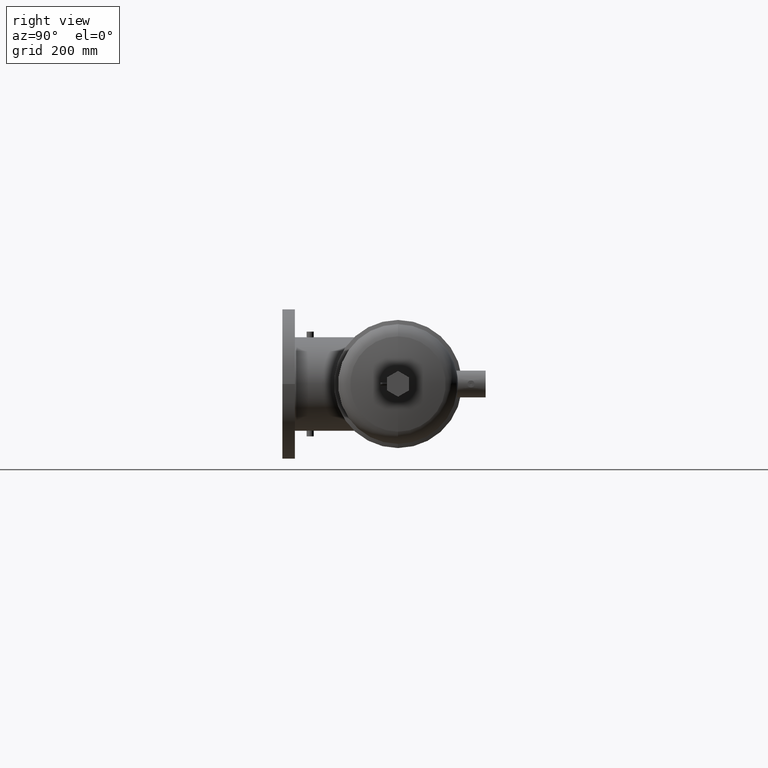
[diagram: clean part render]
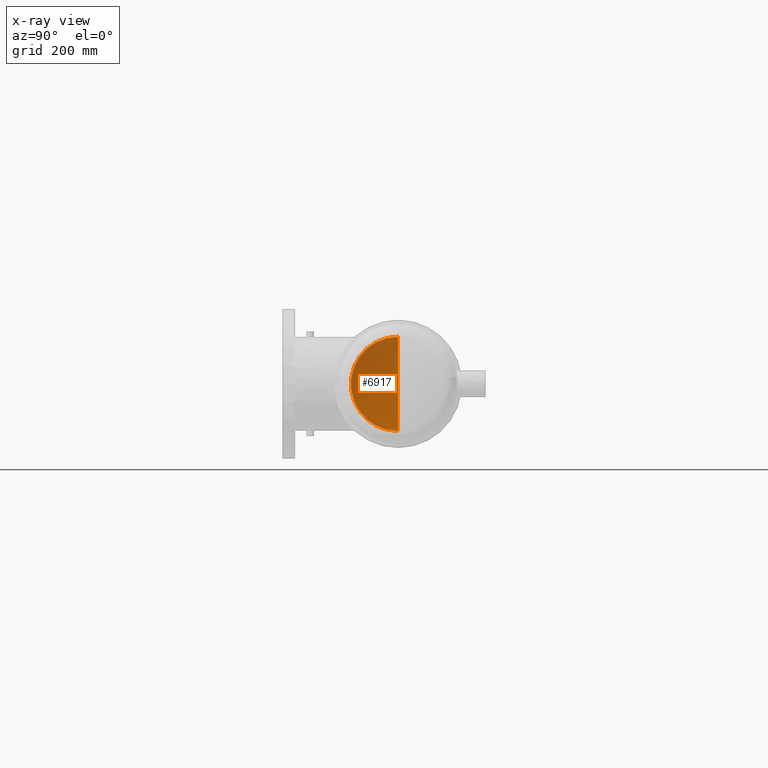
[diagram: x-ray — body ghosted, one internal face saturated and labeled with its STEP entity id]
A machine part, right view, then the same camera in x-ray: the body is ghosted and one INTERNAL B-rep face — a face not visible from any outside direction — is saturated and labeled: STEP entity #6917.
In plain terms, the highlighted toroidal blend (fillet) surface has major radius 0.0856 mm and minor (blend) radius 503 mm.
Its self-contained STEP definition (entity closure, byte-faithful):
#101 = EDGE_CURVE ( 'NONE', #950, #1098, #2002, .T. ) ;
#159 = EDGE_CURVE ( 'NONE', #950, #6503, #5587, .T. ) ;
#537 = DIRECTION ( 'NONE',  ( 0.0000000000000000000, 0.0000000000000000000, -1.000000000000000000 ) ) ;
#571 = CARTESIAN_POINT ( 'NONE',  ( 0.6530339572797809700, 0.0000000000000000000, 0.0000000000000000000 ) ) ;
#950 = VERTEX_POINT ( 'NONE', #6050 ) ;
#1091 = ORIENTED_EDGE ( 'NONE', *, *, #5270, .F. ) ;
#1098 = VERTEX_POINT ( 'NONE', #6661 ) ;
#1155 = DIRECTION ( 'NONE',  ( -0.0000000000000000000, 1.000000000000000000, 1.224646799147353200E-016 ) ) ;
#1443 = ORIENTED_EDGE ( 'NONE', *, *, #101, .F. ) ;
#1655 = DIRECTION ( 'NONE',  ( 0.0000000000000000000, -1.000000000000000000, 0.0000000000000000000 ) ) ;
#1878 = FACE_OUTER_BOUND ( 'NONE', #2619, .T. ) ;
#2002 = CIRCLE ( 'NONE', #4456, 4.232763004428499600 ) ;
#2586 = CIRCLE ( 'NONE', #5854, 19.80314960629924000 ) ;
#2619 = EDGE_LOOP ( 'NONE', ( #1443, #4863, #1091 ) ) ;
#2810 = DIRECTION ( 'NONE',  ( 0.0000000000000000000, -1.224646799147353200E-016, 1.000000000000000000 ) ) ;
#3065 = CARTESIAN_POINT ( 'NONE',  ( 19.99927305945529100, 0.0000000000000000000, 0.0000000000000000000 ) ) ;
#3627 = DIRECTION ( 'NONE',  ( -1.000000000000000000, -0.0000000000000000000, -0.0000000000000000000 ) ) ;
#3935 = AXIS2_PLACEMENT_3D ( 'NONE', #6717, #1155, #2810 ) ;
#4120 = AXIS2_PLACEMENT_3D ( 'NONE', #3065, #3627, #6901 ) ;
#4159 = TOROIDAL_SURFACE ( 'NONE', #4120, 0.003369793703696657600, 19.80314960629924000 ) ;
#4456 = AXIS2_PLACEMENT_3D ( 'NONE', #571, #4474, #6327 ) ;
#4474 = DIRECTION ( 'NONE',  ( -1.000000000000000000, -0.0000000000000000000, -0.0000000000000000000 ) ) ;
#4863 = ORIENTED_EDGE ( 'NONE', *, *, #159, .T. ) ;
#5270 = EDGE_CURVE ( 'NONE', #1098, #6503, #2586, .T. ) ;
#5587 = CIRCLE ( 'NONE', #3935, 19.80314960629924000 ) ;
#5854 = AXIS2_PLACEMENT_3D ( 'NONE', #5960, #1655, #537 ) ;
#5960 = CARTESIAN_POINT ( 'NONE',  ( 19.99927305945529100, 0.0000000000000000000, 0.003369793703696657600 ) ) ;
#6050 = CARTESIAN_POINT ( 'NONE',  ( 0.6530339572797798600, 5.183639664922694200E-016, -4.232763004428497800 ) ) ;
#6327 = DIRECTION ( 'NONE',  ( 0.0000000000000000000, 0.0000000000000000000, 1.000000000000000000 ) ) ;
#6503 = VERTEX_POINT ( 'NONE', #7238 ) ;
#6661 = CARTESIAN_POINT ( 'NONE',  ( 0.6530339572797798600, 0.0000000000000000000, 4.232763004428497800 ) ) ;
#6717 = CARTESIAN_POINT ( 'NONE',  ( 19.99927305945529100, 4.126807073019016200E-019, -0.003369793703696657600 ) ) ;
#6901 = DIRECTION ( 'NONE',  ( 0.0000000000000000000, 0.0000000000000000000, 1.000000000000000000 ) ) ;
#6917 = ADVANCED_FACE ( 'NONE', ( #1878 ), #4159, .F. ) ;
#7238 = CARTESIAN_POINT ( 'NONE',  ( 0.1961237398657399200, -4.181936126497573700E-031, 1.707404996040164600E-015 ) ) ;